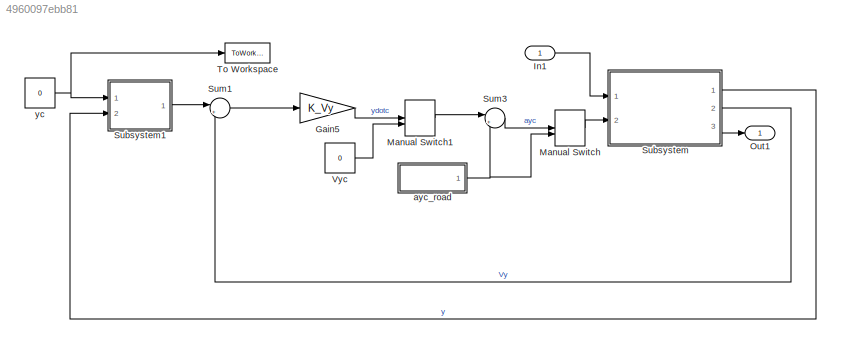
MODEL slx_4960097ebb81
KIND model
CONFIG AbsTol = auto
CONFIG EnableMultiTasking = off
CONFIG FixedStep = dt
CONFIG MaxStep = auto
CONFIG MinStep = auto
CONFIG RelTol = 1e-3
CONFIG SampleTimeConstraint = Unconstrained
CONFIG Solver = ode3
CONFIG SolverName = ode3
CONFIG StartTime = 0.0
CONFIG StopTime = t(end)
BLOCK [Gain] Gain5
  Gain = K_Vy
  OutDataTypeStr = Inherit: Inherit via internal rule
  ParamDataTypeStr = Inherit: Inherit via internal rule
  SaturateOnIntegerOverflow = off
BLOCK [Inport] In1
  IconDisplay = Port number
BLOCK [ManualSwitch] Manual Switch
BLOCK [ManualSwitch] Manual Switch1
  CurrentSetting = 0
BLOCK [Outport] Out1
  IconDisplay = Port number
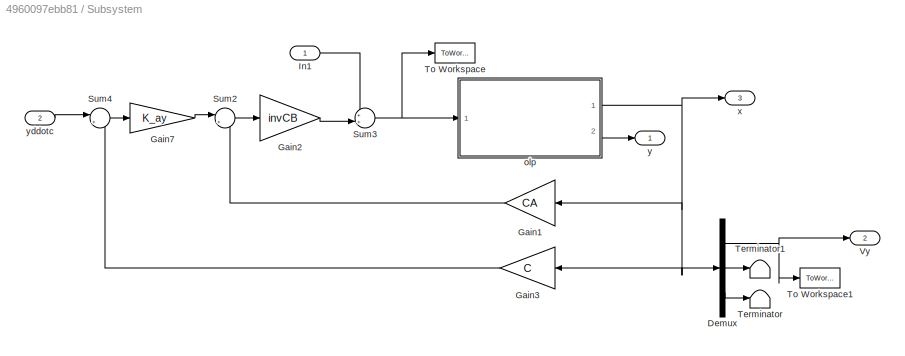
BLOCK [SubSystem] Subsystem
  Ports = [2, 3]
  RequestExecContextInheritance = off
BLOCK [Demux] Subsystem/Demux
  DisplayOption = bar
  Outputs = [1 1 3]
  Ports = [1, 3]
BLOCK [Gain] Subsystem/Gain1
  Gain = CA
  Multiplication = Matrix(K*u)
  OutDataTypeStr = Inherit: Inherit via internal rule
  ParamDataTypeStr = Inherit: Inherit via internal rule
  SaturateOnIntegerOverflow = off
BLOCK [Gain] Subsystem/Gain2
  Gain = invCB
  Multiplication = Matrix(K*u)
  OutDataTypeStr = Inherit: Inherit via internal rule
  ParamDataTypeStr = Inherit: Inherit via internal rule
  SaturateOnIntegerOverflow = off
BLOCK [Gain] Subsystem/Gain3
  Gain = C
  Multiplication = Matrix(K*u)
  OutDataTypeStr = Inherit: Inherit via internal rule
  ParamDataTypeStr = Inherit: Inherit via internal rule
  SaturateOnIntegerOverflow = off
BLOCK [Gain] Subsystem/Gain7
  Gain = K_ay
  OutDataTypeStr = Inherit: Inherit via internal rule
  ParamDataTypeStr = Inherit: Inherit via internal rule
  SaturateOnIntegerOverflow = off
BLOCK [Inport] Subsystem/In1
  IconDisplay = Port number
BLOCK [Sum] Subsystem/Sum2
  IconShape = round
  InputSameDT = off
  Inputs = |+-
  OutDataTypeStr = Inherit: Inherit via internal rule
  Ports = [2, 1]
  SaturateOnIntegerOverflow = off
BLOCK [Sum] Subsystem/Sum3
  IconShape = round
  InputSameDT = off
  Inputs = ++|
  OutDataTypeStr = Inherit: Inherit via internal rule
  Ports = [2, 1]
  SaturateOnIntegerOverflow = off
BLOCK [Sum] Subsystem/Sum4
  IconShape = round
  InputSameDT = off
  Inputs = |+-
  OutDataTypeStr = Inherit: Inherit via internal rule
  Ports = [2, 1]
  SaturateOnIntegerOverflow = off
BLOCK [Terminator] Subsystem/Terminator
BLOCK [Terminator] Subsystem/Terminator1
BLOCK [ToWorkspace] Subsystem/To Workspace
  FixptAsFi = on
  MaxDataPoints = inf
  Ports = [1]
  SampleTime = -1
  Save2DSignal = 3-D array (concatenate along third dimension)
  VariableName = delta
BLOCK [ToWorkspace] Subsystem/To Workspace1
  FixptAsFi = on
  MaxDataPoints = inf
  Ports = [1]
  SampleTime = -1
  Save2DSignal = 3-D array (concatenate along third dimension)
  VariableName = Vy
BLOCK [Outport] Subsystem/Vy
  IconDisplay = Port number
  Port = 2
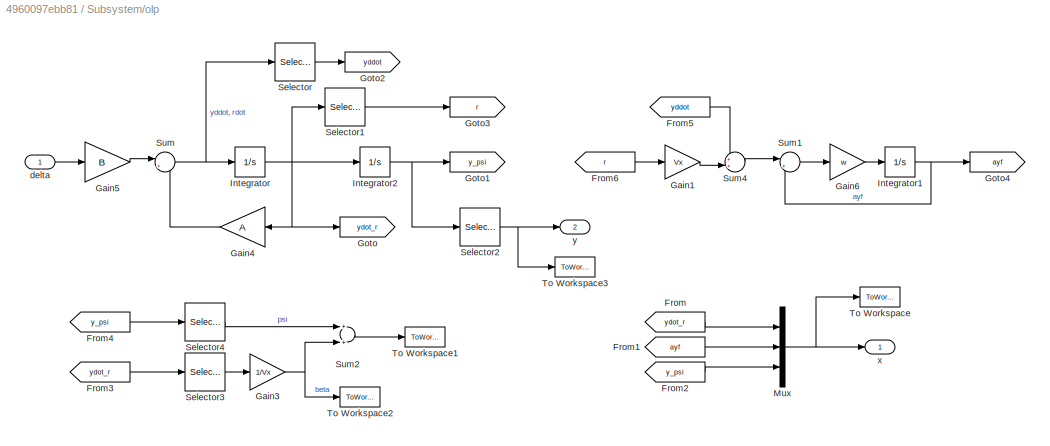
BLOCK [SubSystem] Subsystem/olp
  Ports = [1, 2]
  RequestExecContextInheritance = off
BLOCK [From] Subsystem/olp/From
  GotoTag = ydot_r
BLOCK [From] Subsystem/olp/From1
  GotoTag = ayf
BLOCK [From] Subsystem/olp/From2
  GotoTag = y_psi
BLOCK [From] Subsystem/olp/From3
  GotoTag = ydot_r
BLOCK [From] Subsystem/olp/From4
  GotoTag = y_psi
BLOCK [From] Subsystem/olp/From5
  GotoTag = yddot
BLOCK [From] Subsystem/olp/From6
  GotoTag = r
BLOCK [Gain] Subsystem/olp/Gain1
  Gain = Vx
  OutDataTypeStr = Inherit: Inherit via internal rule
  ParamDataTypeStr = Inherit: Inherit via internal rule
  SaturateOnIntegerOverflow = off
BLOCK [Gain] Subsystem/olp/Gain3
  Gain = 1/Vx
  OutDataTypeStr = Inherit: Inherit via internal rule
  ParamDataTypeStr = Inherit: Inherit via internal rule
  SaturateOnIntegerOverflow = off
BLOCK [Gain] Subsystem/olp/Gain4
  Gain = A
  Multiplication = Matrix(K*u)
  OutDataTypeStr = Inherit: Inherit via internal rule
  ParamDataTypeStr = Inherit: Inherit via internal rule
  SaturateOnIntegerOverflow = off
BLOCK [Gain] Subsystem/olp/Gain5
  Gain = B
  Multiplication = Matrix(K*u)
  OutDataTypeStr = Inherit: Inherit via internal rule
  ParamDataTypeStr = Inherit: Inherit via internal rule
  SaturateOnIntegerOverflow = off
BLOCK [Gain] Subsystem/olp/Gain6
  Gain = w
  OutDataTypeStr = Inherit: Inherit via internal rule
  ParamDataTypeStr = Inherit: Inherit via internal rule
  SaturateOnIntegerOverflow = off
BLOCK [Goto] Subsystem/olp/Goto
  GotoTag = ydot_r
BLOCK [Goto] Subsystem/olp/Goto1
  GotoTag = y_psi
BLOCK [Goto] Subsystem/olp/Goto2
  GotoTag = yddot
BLOCK [Goto] Subsystem/olp/Goto3
  GotoTag = r
BLOCK [Goto] Subsystem/olp/Goto4
  GotoTag = ayf
BLOCK [Integrator] Subsystem/olp/Integrator
  InitialCondition = [0;0]
  Ports = [1, 1]
BLOCK [Integrator] Subsystem/olp/Integrator1
  Ports = [1, 1]
BLOCK [Integrator] Subsystem/olp/Integrator2
  InitialCondition = [0;0]
  Ports = [1, 1]
BLOCK [Mux] Subsystem/olp/Mux
  DisplayOption = bar
  Inputs = 3
  Ports = [3, 1]
BLOCK [Selector] Subsystem/olp/Selector
  IndexOptions = Index vector (dialog)
  Indices = 1
  InputPortWidth = 2
  OutputSizes = 1
  Ports = [1, 1]
BLOCK [Selector] Subsystem/olp/Selector1
  IndexOptions = Index vector (dialog)
  Indices = 2
  InputPortWidth = 2
  OutputSizes = 1
  Ports = [1, 1]
BLOCK [Selector] Subsystem/olp/Selector2
  IndexOptions = Index vector (dialog)
  Indices = 1
  InputPortWidth = 2
  OutputSizes = 1
  Ports = [1, 1]
BLOCK [Selector] Subsystem/olp/Selector3
  IndexOptions = Index vector (dialog)
  Indices = 1
  InputPortWidth = 2
  OutputSizes = 1
  Ports = [1, 1]
BLOCK [Selector] Subsystem/olp/Selector4
  IndexOptions = Index vector (dialog)
  Indices = 2
  InputPortWidth = 2
  OutputSizes = 1
  Ports = [1, 1]
BLOCK [Sum] Subsystem/olp/Sum
  IconShape = round
  InputSameDT = off
  Inputs = |++
  OutDataTypeStr = Inherit: Inherit via internal rule
  Ports = [2, 1]
  SaturateOnIntegerOverflow = off
BLOCK [Sum] Subsystem/olp/Sum1
  IconShape = round
  InputSameDT = off
  Inputs = |+-
  OutDataTypeStr = Inherit: Inherit via internal rule
  Ports = [2, 1]
  SaturateOnIntegerOverflow = off
BLOCK [Sum] Subsystem/olp/Sum2
  InputSameDT = off
  OutDataTypeStr = Inherit: Inherit via internal rule
  Ports = [2, 1]
  SaturateOnIntegerOverflow = off
BLOCK [Sum] Subsystem/olp/Sum4
  IconShape = round
  InputSameDT = off
  Inputs = ++|
  OutDataTypeStr = Inherit: Inherit via internal rule
  Ports = [2, 1]
  SaturateOnIntegerOverflow = off
BLOCK [ToWorkspace] Subsystem/olp/To Workspace
  FixptAsFi = on
  MaxDataPoints = inf
  Ports = [1]
  SampleTime = -1
  Save2DSignal = 3-D array (concatenate along third dimension)
  VariableName = x
BLOCK [ToWorkspace] Subsystem/olp/To Workspace1
  FixptAsFi = on
  MaxDataPoints = inf
  Ports = [1]
  SampleTime = -1
  Save2DSignal = 3-D array (concatenate along third dimension)
  VariableName = chi
BLOCK [ToWorkspace] Subsystem/olp/To Workspace2
  FixptAsFi = on
  MaxDataPoints = inf
  Ports = [1]
  SampleTime = -1
  Save2DSignal = 3-D array (concatenate along third dimension)
  VariableName = beta
BLOCK [ToWorkspace] Subsystem/olp/To Workspace3
  FixptAsFi = on
  MaxDataPoints = inf
  Ports = [1]
  SampleTime = -1
  Save2DSignal = 3-D array (concatenate along third dimension)
  VariableName = y
BLOCK [Inport] Subsystem/olp/delta
  IconDisplay = Port number
BLOCK [Outport] Subsystem/olp/x
  IconDisplay = Port number
BLOCK [Outport] Subsystem/olp/y
  IconDisplay = Port number
  Port = 2
BLOCK [Outport] Subsystem/x
  IconDisplay = Port number
  Port = 3
BLOCK [Outport] Subsystem/y
  IconDisplay = Port number
BLOCK [Inport] Subsystem/yddotc
  IconDisplay = Port number
  Port = 2
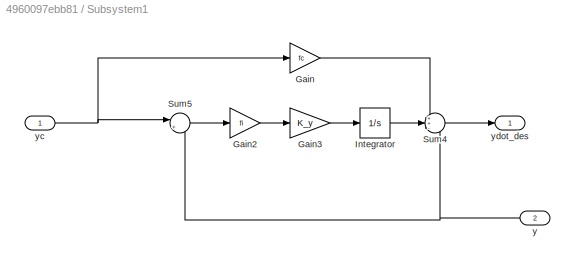
BLOCK [SubSystem] Subsystem1
  Ports = [2, 1]
  RequestExecContextInheritance = off
BLOCK [Gain] Subsystem1/Gain
  Gain = fc
  OutDataTypeStr = Inherit: Inherit via internal rule
  ParamDataTypeStr = Inherit: Inherit via internal rule
  SaturateOnIntegerOverflow = off
BLOCK [Gain] Subsystem1/Gain2
  Gain = fi
  OutDataTypeStr = Inherit: Inherit via internal rule
  ParamDataTypeStr = Inherit: Inherit via internal rule
  SaturateOnIntegerOverflow = off
BLOCK [Gain] Subsystem1/Gain3
  Gain = K_y
  OutDataTypeStr = Inherit: Inherit via internal rule
  ParamDataTypeStr = Inherit: Inherit via internal rule
  SaturateOnIntegerOverflow = off
BLOCK [Integrator] Subsystem1/Integrator
  Ports = [1, 1]
BLOCK [Sum] Subsystem1/Sum4
  IconShape = round
  InputSameDT = off
  Inputs = ++-
  OutDataTypeStr = Inherit: Inherit via internal rule
  Ports = [3, 1]
  SaturateOnIntegerOverflow = off
BLOCK [Sum] Subsystem1/Sum5
  IconShape = round
  InputSameDT = off
  Inputs = |+-
  OutDataTypeStr = Inherit: Inherit via internal rule
  Ports = [2, 1]
  SaturateOnIntegerOverflow = off
BLOCK [Inport] Subsystem1/y
  IconDisplay = Port number
  Port = 2
BLOCK [Inport] Subsystem1/yc
  IconDisplay = Port number
BLOCK [Outport] Subsystem1/ydot_des
  IconDisplay = Port number
BLOCK [Sum] Sum1
  IconShape = round
  InputSameDT = off
  Inputs = |+-
  OutDataTypeStr = Inherit: Inherit via internal rule
  Ports = [2, 1]
  SaturateOnIntegerOverflow = off
BLOCK [Sum] Sum3
  IconShape = round
  InputSameDT = off
  Inputs = |++
  OutDataTypeStr = Inherit: Inherit via internal rule
  Ports = [2, 1]
  SaturateOnIntegerOverflow = off
BLOCK [ToWorkspace] To Workspace
  FixptAsFi = on
  MaxDataPoints = inf
  Ports = [1]
  SampleTime = -1
  Save2DSignal = 3-D array (concatenate along third dimension)
  VariableName = yc
BLOCK [Constant] Vyc
  Value = 0
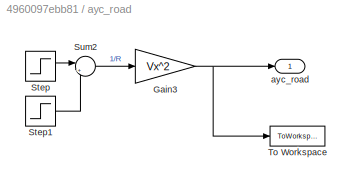
BLOCK [SubSystem] ayc_road
  Ports = [0, 1]
  RequestExecContextInheritance = off
BLOCK [Gain] ayc_road/Gain3
  Gain = Vx^2
  Multiplication = Matrix(K*u)
  OutDataTypeStr = Inherit: Inherit via internal rule
  ParamDataTypeStr = Inherit: Inherit via internal rule
  SaturateOnIntegerOverflow = off
BLOCK [Step] ayc_road/Step
  After = rho
  SampleTime = 0
  Time = t1
BLOCK [Step] ayc_road/Step1
  After = rho
  SampleTime = 0
  Time = t2
BLOCK [Sum] ayc_road/Sum2
  IconShape = round
  InputSameDT = off
  Inputs = |+-
  OutDataTypeStr = Inherit: Inherit via internal rule
  Ports = [2, 1]
  SaturateOnIntegerOverflow = off
BLOCK [ToWorkspace] ayc_road/To Workspace
  FixptAsFi = on
  MaxDataPoints = inf
  Ports = [1]
  SampleTime = -1
  Save2DSignal = 3-D array (concatenate along third dimension)
  VariableName = ay_road
BLOCK [Outport] ayc_road/ayc_road
  IconDisplay = Port number
BLOCK [Constant] yc
  Value = 0
LINE Gain5:1 -> Manual Switch1:1
LINE In1:1 -> Subsystem:1
LINE Manual Switch1:1 -> Sum3:1
LINE Manual Switch:1 -> Subsystem:2
NET Subsystem/Demux:1 -> Subsystem/To Workspace1:1, Subsystem/Vy:1
LINE Subsystem/Demux:2 -> Subsystem/Terminator1:1
LINE Subsystem/Demux:3 -> Subsystem/Terminator:1
LINE Subsystem/Gain1:1 -> Subsystem/Sum2:2
LINE Subsystem/Gain2:1 -> Subsystem/Sum3:2
LINE Subsystem/Gain3:1 -> Subsystem/Sum4:2
LINE Subsystem/Gain7:1 -> Subsystem/Sum2:1
LINE Subsystem/In1:1 -> Subsystem/Sum3:1
LINE Subsystem/Sum2:1 -> Subsystem/Gain2:1
NET Subsystem/Sum3:1 -> Subsystem/To Workspace:1, Subsystem/olp:1
LINE Subsystem/Sum4:1 -> Subsystem/Gain7:1
LINE Subsystem/olp/From1:1 -> Subsystem/olp/Mux:2
LINE Subsystem/olp/From2:1 -> Subsystem/olp/Mux:3
LINE Subsystem/olp/From3:1 -> Subsystem/olp/Selector3:1
LINE Subsystem/olp/From4:1 -> Subsystem/olp/Selector4:1
LINE Subsystem/olp/From5:1 -> Subsystem/olp/Sum4:1
LINE Subsystem/olp/From6:1 -> Subsystem/olp/Gain1:1
LINE Subsystem/olp/From:1 -> Subsystem/olp/Mux:1
LINE Subsystem/olp/Gain1:1 -> Subsystem/olp/Sum4:2
NET Subsystem/olp/Gain3:1 -> Subsystem/olp/Sum2:2, Subsystem/olp/To Workspace2:1
LINE Subsystem/olp/Gain4:1 -> Subsystem/olp/Sum:2
LINE Subsystem/olp/Gain5:1 -> Subsystem/olp/Sum:1
LINE Subsystem/olp/Gain6:1 -> Subsystem/olp/Integrator1:1
NET Subsystem/olp/Integrator1:1 -> Subsystem/olp/Goto4:1, Subsystem/olp/Sum1:2
NET Subsystem/olp/Integrator2:1 -> Subsystem/olp/Goto1:1, Subsystem/olp/Selector2:1
NET Subsystem/olp/Integrator:1 -> Subsystem/olp/Gain4:1, Subsystem/olp/Goto:1, Subsystem/olp/Integrator2:1, Subsystem/olp/Selector1:1
NET Subsystem/olp/Mux:1 -> Subsystem/olp/To Workspace:1, Subsystem/olp/x:1
LINE Subsystem/olp/Selector1:1 -> Subsystem/olp/Goto3:1
NET Subsystem/olp/Selector2:1 -> Subsystem/olp/To Workspace3:1, Subsystem/olp/y:1
LINE Subsystem/olp/Selector3:1 -> Subsystem/olp/Gain3:1
LINE Subsystem/olp/Selector4:1 -> Subsystem/olp/Sum2:1
LINE Subsystem/olp/Selector:1 -> Subsystem/olp/Goto2:1
LINE Subsystem/olp/Sum1:1 -> Subsystem/olp/Gain6:1
LINE Subsystem/olp/Sum2:1 -> Subsystem/olp/To Workspace1:1
LINE Subsystem/olp/Sum4:1 -> Subsystem/olp/Sum1:1
NET Subsystem/olp/Sum:1 -> Subsystem/olp/Integrator:1, Subsystem/olp/Selector:1
LINE Subsystem/olp/delta:1 -> Subsystem/olp/Gain5:1
NET Subsystem/olp:1 -> Subsystem/Demux:1, Subsystem/Gain1:1, Subsystem/Gain3:1, Subsystem/x:1
LINE Subsystem/olp:2 -> Subsystem/y:1
LINE Subsystem/yddotc:1 -> Subsystem/Sum4:1
LINE Subsystem1/Gain2:1 -> Subsystem1/Gain3:1
LINE Subsystem1/Gain3:1 -> Subsystem1/Integrator:1
LINE Subsystem1/Gain:1 -> Subsystem1/Sum4:1
LINE Subsystem1/Integrator:1 -> Subsystem1/Sum4:2
LINE Subsystem1/Sum4:1 -> Subsystem1/ydot_des:1
LINE Subsystem1/Sum5:1 -> Subsystem1/Gain2:1
NET Subsystem1/y:1 -> Subsystem1/Sum4:3, Subsystem1/Sum5:2
NET Subsystem1/yc:1 -> Subsystem1/Gain:1, Subsystem1/Sum5:1
LINE Subsystem1:1 -> Sum1:1
LINE Subsystem:1 -> Subsystem1:2
LINE Subsystem:2 -> Sum1:2
LINE Subsystem:3 -> Out1:1
LINE Sum1:1 -> Gain5:1
LINE Sum3:1 -> Manual Switch:1
LINE Vyc:1 -> Manual Switch1:2
NET ayc_road/Gain3:1 -> ayc_road/To Workspace:1, ayc_road/ayc_road:1
LINE ayc_road/Step1:1 -> ayc_road/Sum2:2
LINE ayc_road/Step:1 -> ayc_road/Sum2:1
LINE ayc_road/Sum2:1 -> ayc_road/Gain3:1
NET ayc_road:1 -> Manual Switch:2, Sum3:2
NET yc:1 -> Subsystem1:1, To Workspace:1
note: NET lines group one-source signal fan-out (src -> all destinations, sorted); 1:1 wires keep LINE
